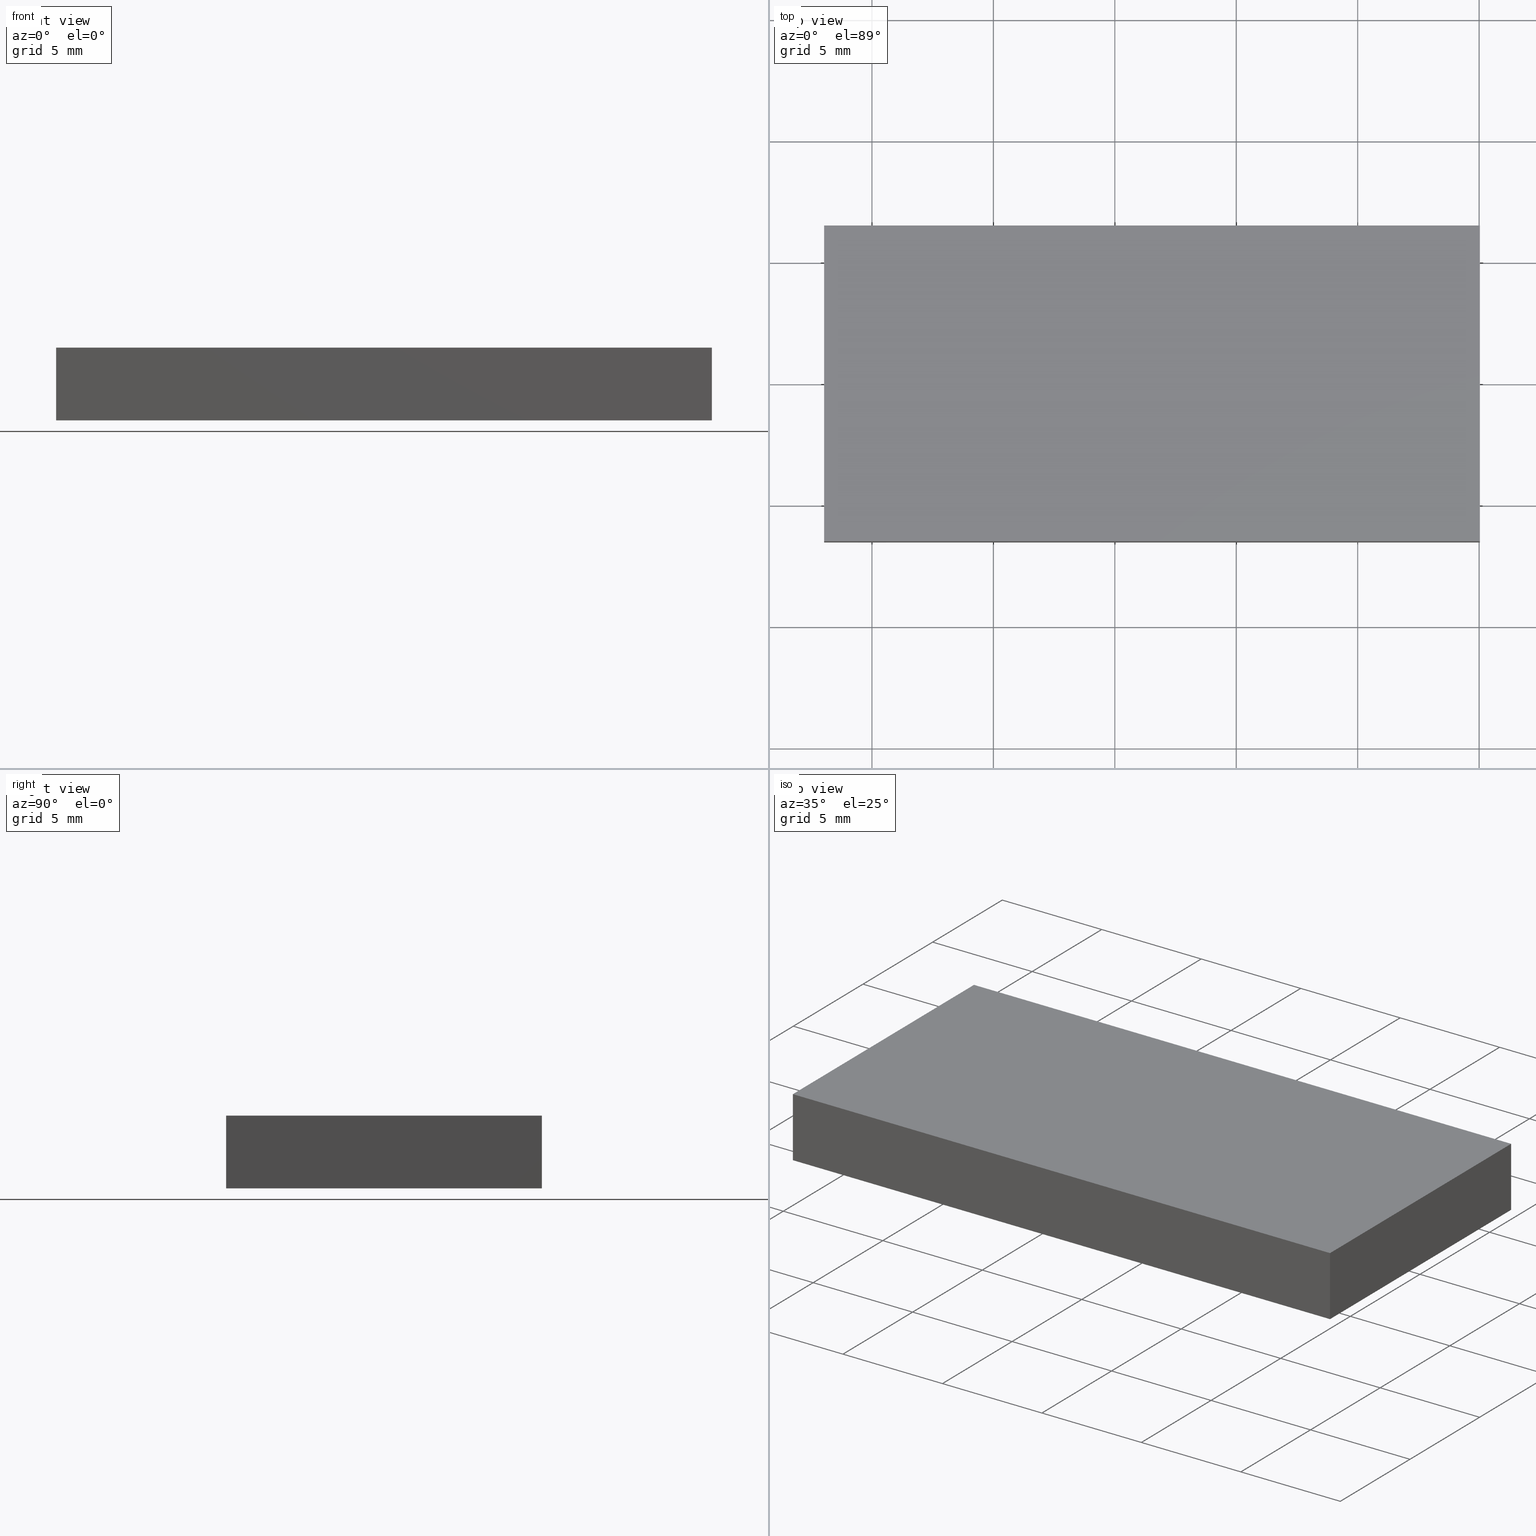
[diagram: canonical four-view strip — front | top / right | iso, engineering-drawing reading convention]
A machine part, canonical four-view strip (front | top / right | iso — engineering-drawing reading convention). The complete STEP part file that produces these views, byte-faithful:
ISO-10303-21;
HEADER;
FILE_DESCRIPTION (( 'STEP AP203' ),
    '1' );
FILE_NAME ('435000.STEP',
    '2020-03-11T07:17:52',
    ( '' ),
    ( '' ),
    'SwSTEP 2.0',
    'SolidWorks 2019',
    '' );
FILE_SCHEMA (( 'CONFIG_CONTROL_DESIGN' ));
ENDSEC;

DATA;
#1 = PERSON_AND_ORGANIZATION_ROLE ( 'design_owner' ) ;
#2 = SHAPE_DEFINITION_REPRESENTATION ( #62, #190 ) ;
#3 = PRODUCT_DEFINITION ( 'δ֪', '', #146, #86 ) ;
#4 = PLANE ( 'NONE',  #221 ) ;
#5 = AXIS2_PLACEMENT_3D ( 'NONE', #29, #199, #30 ) ;
#6 = ORIENTED_EDGE ( 'NONE', *, *, #189, .F. ) ;
#7 = COORDINATED_UNIVERSAL_TIME_OFFSET ( 8, 0, .AHEAD. ) ;
#8 = DATE_AND_TIME ( #156, #173 ) ;
#9 = ORIENTED_EDGE ( 'NONE', *, *, #53, .F. ) ;
#10 = ORIENTED_EDGE ( 'NONE', *, *, #189, .T. ) ;
#11 = LINE ( 'NONE', #141, #157 ) ;
#12 = ADVANCED_FACE ( 'NONE', ( #55 ), #4, .F. ) ;
#13 = CARTESIAN_POINT ( 'NONE',  ( 15.03124999999999645, -6.499999999999990230, 0.0000000000000000000 ) ) ;
#14 = CARTESIAN_POINT ( 'NONE',  ( -11.96875000000000178, 6.500000000000000888, 0.0000000000000000000 ) ) ;
#15 = ORIENTED_EDGE ( 'NONE', *, *, #203, .T. ) ;
#16 = CC_DESIGN_SECURITY_CLASSIFICATION ( #28, ( #146 ) ) ;
#17 = CARTESIAN_POINT ( 'NONE',  ( -11.96875000000000178, -6.499999999999999112, 3.000000000000000000 ) ) ;
#18 = ORIENTED_EDGE ( 'NONE', *, *, #180, .F. ) ;
#19 = CARTESIAN_POINT ( 'NONE',  ( -11.96875000000000178, 6.500000000000000888, 3.000000000000000000 ) ) ;
#20 = DIRECTION ( 'NONE',  ( 1.334402673828314079E-16, 1.000000000000000000, -0.0000000000000000000 ) ) ;
#21 = PERSON_AND_ORGANIZATION_ROLE ( 'design_supplier' ) ;
#22 = APPLICATION_PROTOCOL_DEFINITION ( 'international standard', 'config_control_design', 1994, #183 ) ;
#23 = PERSON_AND_ORGANIZATION ( #212, #24 ) ;
#24 = ORGANIZATION ( 'δָ��', 'δָ��', '' ) ;
#25 = ORIENTED_EDGE ( 'NONE', *, *, #60, .F. ) ;
#26 = PERSON_AND_ORGANIZATION ( #212, #24 ) ;
#27 = DIRECTION ( 'NONE',  ( 1.000000000000000000, 3.212450881438532241E-16, 0.0000000000000000000 ) ) ;
#28 = SECURITY_CLASSIFICATION ( '', '', #185 ) ;
#29 = CARTESIAN_POINT ( 'NONE',  ( -11.96875000000000178, 6.500000000000000888, 3.000000000000000000 ) ) ;
#30 = DIRECTION ( 'NONE',  ( 0.0000000000000000000, -0.0000000000000000000, -1.000000000000000000 ) ) ;
#31 = APPROVAL_PERSON_ORGANIZATION ( #208, #108, #155 ) ;
#32 = DIRECTION ( 'NONE',  ( 0.0000000000000000000, -1.000000000000000000, 0.0000000000000000000 ) ) ;
#33 = ORIENTED_EDGE ( 'NONE', *, *, #144, .T. ) ;
#34 = CARTESIAN_POINT ( 'NONE',  ( 15.03124999999999822, 6.500000000000000888, 0.0000000000000000000 ) ) ;
#35 = AXIS2_PLACEMENT_3D ( 'NONE', #50, #112, #225 ) ;
#36 = PERSON_AND_ORGANIZATION ( #212, #24 ) ;
#37 = MANIFOLD_SOLID_BREP ( '͹̨-����1', #236 ) ;
#38 = PERSON_AND_ORGANIZATION ( #212, #24 ) ;
#39 =( GEOMETRIC_REPRESENTATION_CONTEXT ( 3 ) GLOBAL_UNCERTAINTY_ASSIGNED_CONTEXT ( ( #143 ) ) GLOBAL_UNIT_ASSIGNED_CONTEXT ( ( #48, #216, #128 ) ) REPRESENTATION_CONTEXT ( 'NONE', 'WORKASPACE' ) );
#40 = CC_DESIGN_DATE_AND_TIME_ASSIGNMENT ( #188, #139, ( #28 ) ) ;
#41 = ORIENTED_EDGE ( 'NONE', *, *, #230, .T. ) ;
#42 = EDGE_CURVE ( 'NONE', #142, #117, #114, .T. ) ;
#43 = DIRECTION ( 'NONE',  ( -0.0000000000000000000, 0.0000000000000000000, -1.000000000000000000 ) ) ;
#44 = CC_DESIGN_PERSON_AND_ORGANIZATION_ASSIGNMENT ( #76, #1, ( #51 ) ) ;
#45 = VECTOR ( 'NONE', #234, 1000.000000000000000 ) ;
#46 = DIRECTION ( 'NONE',  ( -1.000000000000000000, -0.0000000000000000000, -0.0000000000000000000 ) ) ;
#47 = VECTOR ( 'NONE', #32, 1000.000000000000000 ) ;
#48 =( LENGTH_UNIT ( ) NAMED_UNIT ( * ) SI_UNIT ( .MILLI., .METRE. ) );
#49 = CARTESIAN_POINT ( 'NONE',  ( 15.03124999999999645, -6.499999999999990230, 3.000000000000000000 ) ) ;
#50 = CARTESIAN_POINT ( 'NONE',  ( -11.96875000000000178, -6.499999999999999112, 3.000000000000000000 ) ) ;
#51 = PRODUCT ( '435000', '435000', '', ( #151 ) ) ;
#52 = FACE_OUTER_BOUND ( 'NONE', #69, .T. ) ;
#53 = EDGE_CURVE ( 'NONE', #101, #174, #11, .T. ) ;
#54 = PERSON_AND_ORGANIZATION_ROLE ( 'classification_officer' ) ;
#55 = FACE_OUTER_BOUND ( 'NONE', #125, .T. ) ;
#56 = LOCAL_TIME ( 15, 17, 52.00000000000000000, #106 ) ;
#57 = APPROVAL_STATUS ( 'not_yet_approved' ) ;
#58 = DIRECTION ( 'NONE',  ( 1.000000000000000000, 0.0000000000000000000, -0.0000000000000000000 ) ) ;
#59 = PERSON_AND_ORGANIZATION_ROLE ( 'creator' ) ;
#60 = EDGE_CURVE ( 'NONE', #96, #175, #195, .T. ) ;
#61 = APPROVAL ( #187, 'δָ��' ) ;
#62 = PRODUCT_DEFINITION_SHAPE ( 'NONE', 'NONE',  #3 ) ;
#63 = LINE ( 'NONE', #34, #134 ) ;
#64 = CC_DESIGN_APPROVAL ( #61, ( #146 ) ) ;
#65 = CARTESIAN_POINT ( 'NONE',  ( 0.0000000000000000000, 0.0000000000000000000, 3.000000000000000000 ) ) ;
#66 = ORIENTED_EDGE ( 'NONE', *, *, #119, .T. ) ;
#67 = DIRECTION ( 'NONE',  ( 0.0000000000000000000, 0.0000000000000000000, -1.000000000000000000 ) ) ;
#68 = CARTESIAN_POINT ( 'NONE',  ( 15.03124999999999645, -6.499999999999990230, 3.000000000000000000 ) ) ;
#69 = EDGE_LOOP ( 'NONE', ( #171, #122, #204, #129 ) ) ;
#70 = ADVANCED_FACE ( 'NONE', ( #118 ), #163, .F. ) ;
#71 = PLANE ( 'NONE',  #138 ) ;
#72 = ORIENTED_EDGE ( 'NONE', *, *, #166, .T. ) ;
#73 = PERSON_AND_ORGANIZATION_ROLE ( 'creator' ) ;
#74 = COORDINATED_UNIVERSAL_TIME_OFFSET ( 8, 0, .AHEAD. ) ;
#75 = APPROVAL_ROLE ( '' ) ;
#76 = PERSON_AND_ORGANIZATION ( #212, #24 ) ;
#77 = ORIENTED_EDGE ( 'NONE', *, *, #144, .F. ) ;
#78 = DIRECTION ( 'NONE',  ( 1.334402673828314079E-16, 1.000000000000000000, -0.0000000000000000000 ) ) ;
#79 = PRODUCT_RELATED_PRODUCT_CATEGORY ( 'detail', '', ( #51 ) ) ;
#80 = PLANE ( 'NONE',  #5 ) ;
#81 = DIRECTION ( 'NONE',  ( 0.0000000000000000000, -1.000000000000000000, 0.0000000000000000000 ) ) ;
#82 = ADVANCED_FACE ( 'NONE', ( #198 ), #87, .F. ) ;
#83 = APPROVAL_PERSON_ORGANIZATION ( #38, #235, #89 ) ;
#84 = CARTESIAN_POINT ( 'NONE',  ( -11.96875000000000178, -6.499999999999999112, 3.000000000000000000 ) ) ;
#85 = LINE ( 'NONE', #229, #194 ) ;
#86 = DESIGN_CONTEXT ( 'detailed design', #183, 'design' ) ;
#87 = PLANE ( 'NONE',  #100 ) ;
#88 = APPLICATION_PROTOCOL_DEFINITION ( 'international standard', 'config_control_design', 1994, #172 ) ;
#89 = APPROVAL_ROLE ( '' ) ;
#90 = PERSON_AND_ORGANIZATION ( #212, #24 ) ;
#91 = ORIENTED_EDGE ( 'NONE', *, *, #213, .F. ) ;
#92 = VECTOR ( 'NONE', #130, 1000.000000000000000 ) ;
#93 = CALENDAR_DATE ( 2020, 11, 3 ) ;
#94 = VECTOR ( 'NONE', #165, 1000.000000000000000 ) ;
#95 = VECTOR ( 'NONE', #237, 1000.000000000000000 ) ;
#96 = VERTEX_POINT ( 'NONE', #49 ) ;
#97 = LINE ( 'NONE', #68, #228 ) ;
#98 = CC_DESIGN_PERSON_AND_ORGANIZATION_ASSIGNMENT ( #36, #21, ( #146 ) ) ;
#99 = CARTESIAN_POINT ( 'NONE',  ( 15.03124999999999822, 6.500000000000000888, 0.0000000000000000000 ) ) ;
#100 = AXIS2_PLACEMENT_3D ( 'NONE', #65, #215, #102 ) ;
#101 = VERTEX_POINT ( 'NONE', #99 ) ;
#102 = DIRECTION ( 'NONE',  ( -1.000000000000000000, 0.0000000000000000000, -0.0000000000000000000 ) ) ;
#103 = EDGE_LOOP ( 'NONE', ( #9, #6, #182, #18 ) ) ;
#104 = DIRECTION ( 'NONE',  ( -1.000000000000000000, 0.0000000000000000000, -0.0000000000000000000 ) ) ;
#105 = CC_DESIGN_APPROVAL ( #108, ( #3 ) ) ;
#106 = COORDINATED_UNIVERSAL_TIME_OFFSET ( 8, 0, .AHEAD. ) ;
#107 = DATE_TIME_ROLE ( 'creation_date' ) ;
#108 = APPROVAL ( #57, 'δָ��' ) ;
#109 = CALENDAR_DATE ( 2020, 11, 3 ) ;
#110 = ORIENTED_EDGE ( 'NONE', *, *, #211, .T. ) ;
#111 = CALENDAR_DATE ( 2020, 11, 3 ) ;
#112 = DIRECTION ( 'NONE',  ( -3.212450881438532241E-16, 1.000000000000000000, 0.0000000000000000000 ) ) ;
#113 = CC_DESIGN_PERSON_AND_ORGANIZATION_ASSIGNMENT ( #90, #54, ( #28 ) ) ;
#114 = LINE ( 'NONE', #192, #158 ) ;
#115 = CC_DESIGN_APPROVAL ( #235, ( #28 ) ) ;
#116 = CARTESIAN_POINT ( 'NONE',  ( 15.03124999999999822, 6.500000000000000888, 3.000000000000000000 ) ) ;
#117 = VERTEX_POINT ( 'NONE', #13 ) ;
#118 = FACE_OUTER_BOUND ( 'NONE', #207, .T. ) ;
#119 = EDGE_CURVE ( 'NONE', #152, #142, #201, .T. ) ;
#120 = VERTEX_POINT ( 'NONE', #19 ) ;
#121 = CARTESIAN_POINT ( 'NONE',  ( 15.03124999999999822, 6.500000000000000888, 3.000000000000000000 ) ) ;
#122 = ORIENTED_EDGE ( 'NONE', *, *, #166, .F. ) ;
#123 = CC_DESIGN_PERSON_AND_ORGANIZATION_ASSIGNMENT ( #23, #73, ( #3 ) ) ;
#124 = LINE ( 'NONE', #126, #94 ) ;
#125 = EDGE_LOOP ( 'NONE', ( #170, #154, #219, #72 ) ) ;
#126 = CARTESIAN_POINT ( 'NONE',  ( -11.96875000000000178, 6.500000000000000888, 3.000000000000000000 ) ) ;
#127 = APPROVAL_PERSON_ORGANIZATION ( #209, #61, #75 ) ;
#128 =( NAMED_UNIT ( * ) SI_UNIT ( $, .STERADIAN. ) SOLID_ANGLE_UNIT ( ) );
#129 = ORIENTED_EDGE ( 'NONE', *, *, #213, .T. ) ;
#130 = DIRECTION ( 'NONE',  ( -0.0000000000000000000, -0.0000000000000000000, -1.000000000000000000 ) ) ;
#131 = DATE_AND_TIME ( #111, #162 ) ;
#132 = CARTESIAN_POINT ( 'NONE',  ( -11.96875000000000178, 6.500000000000000888, 3.000000000000000000 ) ) ;
#133 = ORIENTED_EDGE ( 'NONE', *, *, #42, .T. ) ;
#134 = VECTOR ( 'NONE', #20, 1000.000000000000000 ) ;
#135 = CARTESIAN_POINT ( 'NONE',  ( 0.0000000000000000000, 0.0000000000000000000, 0.0000000000000000000 ) ) ;
#136 = ORIENTED_EDGE ( 'NONE', *, *, #211, .F. ) ;
#137 = DATE_AND_TIME ( #109, #168 ) ;
#138 = AXIS2_PLACEMENT_3D ( 'NONE', #217, #67, #104 ) ;
#139 = DATE_TIME_ROLE ( 'classification_date' ) ;
#140 = AXIS2_PLACEMENT_3D ( 'NONE', #135, #220, #153 ) ;
#141 = CARTESIAN_POINT ( 'NONE',  ( -11.96875000000000178, 6.500000000000000888, 0.0000000000000000000 ) ) ;
#142 = VERTEX_POINT ( 'NONE', #160 ) ;
#143 = UNCERTAINTY_MEASURE_WITH_UNIT (LENGTH_MEASURE( 1.000000000000000082E-05 ), #48, 'distance_accuracy_value', 'NONE');
#144 = EDGE_CURVE ( 'NONE', #152, #96, #214, .T. ) ;
#145 = PLANE ( 'NONE',  #150 ) ;
#146 = PRODUCT_DEFINITION_FORMATION_WITH_SPECIFIED_SOURCE ( '�κ�', '', #51, .NOT_KNOWN. ) ;
#147 = CARTESIAN_POINT ( 'NONE',  ( -11.96875000000000178, -6.499999999999999112, 3.000000000000000000 ) ) ;
#148 = LINE ( 'NONE', #178, #47 ) ;
#149 = FACE_OUTER_BOUND ( 'NONE', #103, .T. ) ;
#150 = AXIS2_PLACEMENT_3D ( 'NONE', #202, #233, #197 ) ;
#151 = MECHANICAL_CONTEXT ( 'NONE', #172, 'mechanical' ) ;
#152 = VERTEX_POINT ( 'NONE', #17 ) ;
#153 = DIRECTION ( 'NONE',  ( 1.000000000000000000, 0.0000000000000000000, 0.0000000000000000000 ) ) ;
#154 = ORIENTED_EDGE ( 'NONE', *, *, #119, .F. ) ;
#155 = APPROVAL_ROLE ( '' ) ;
#156 = CALENDAR_DATE ( 2020, 11, 3 ) ;
#157 = VECTOR ( 'NONE', #46, 1000.000000000000000 ) ;
#158 = VECTOR ( 'NONE', #27, 1000.000000000000000 ) ;
#159 = CC_DESIGN_PERSON_AND_ORGANIZATION_ASSIGNMENT ( #26, #59, ( #146 ) ) ;
#160 = CARTESIAN_POINT ( 'NONE',  ( -11.96875000000000178, -6.499999999999999112, 0.0000000000000000000 ) ) ;
#161 = LINE ( 'NONE', #205, #169 ) ;
#162 = LOCAL_TIME ( 15, 17, 52.00000000000000000, #167 ) ;
#163 = PLANE ( 'NONE',  #35 ) ;
#164 = CARTESIAN_POINT ( 'NONE',  ( 15.03124999999999822, 6.500000000000000888, 3.000000000000000000 ) ) ;
#165 = DIRECTION ( 'NONE',  ( -0.0000000000000000000, -0.0000000000000000000, -1.000000000000000000 ) ) ;
#166 = EDGE_CURVE ( 'NONE', #120, #174, #124, .T. ) ;
#167 = COORDINATED_UNIVERSAL_TIME_OFFSET ( 8, 0, .AHEAD. ) ;
#168 = LOCAL_TIME ( 15, 17, 52.00000000000000000, #7 ) ;
#169 = VECTOR ( 'NONE', #176, 1000.000000000000000 ) ;
#170 = ORIENTED_EDGE ( 'NONE', *, *, #180, .T. ) ;
#171 = ORIENTED_EDGE ( 'NONE', *, *, #53, .T. ) ;
#172 = APPLICATION_CONTEXT ( 'configuration controlled 3d designs of mechanical parts and assemblies' ) ;
#173 = LOCAL_TIME ( 15, 17, 52.00000000000000000, #74 ) ;
#174 = VERTEX_POINT ( 'NONE', #14 ) ;
#175 = VERTEX_POINT ( 'NONE', #121 ) ;
#176 = DIRECTION ( 'NONE',  ( -1.000000000000000000, -0.0000000000000000000, -0.0000000000000000000 ) ) ;
#177 = FACE_OUTER_BOUND ( 'NONE', #222, .T. ) ;
#178 = CARTESIAN_POINT ( 'NONE',  ( -11.96875000000000178, 6.500000000000000888, 3.000000000000000000 ) ) ;
#179 = LINE ( 'NONE', #164, #95 ) ;
#180 = EDGE_CURVE ( 'NONE', #174, #142, #85, .T. ) ;
#181 = APPROVAL_DATE_TIME ( #137, #108 ) ;
#182 = ORIENTED_EDGE ( 'NONE', *, *, #42, .F. ) ;
#183 = APPLICATION_CONTEXT ( 'configuration controlled 3d designs of mechanical parts and assemblies' ) ;
#184 = APPROVAL_STATUS ( 'not_yet_approved' ) ;
#185 = SECURITY_CLASSIFICATION_LEVEL ( 'unclassified' ) ;
#186 = ORIENTED_EDGE ( 'NONE', *, *, #60, .T. ) ;
#187 = APPROVAL_STATUS ( 'not_yet_approved' ) ;
#188 = DATE_AND_TIME ( #223, #56 ) ;
#189 = EDGE_CURVE ( 'NONE', #117, #101, #63, .T. ) ;
#190 = ADVANCED_BREP_SHAPE_REPRESENTATION ( '435000', ( #37, #140 ), #39 ) ;
#191 = CC_DESIGN_DATE_AND_TIME_ASSIGNMENT ( #8, #107, ( #3 ) ) ;
#192 = CARTESIAN_POINT ( 'NONE',  ( -11.96875000000000178, -6.499999999999999112, 0.0000000000000000000 ) ) ;
#193 = ADVANCED_FACE ( 'NONE', ( #52 ), #80, .F. ) ;
#194 = VECTOR ( 'NONE', #81, 1000.000000000000000 ) ;
#195 = LINE ( 'NONE', #116, #231 ) ;
#196 = ADVANCED_FACE ( 'NONE', ( #177 ), #145, .F. ) ;
#197 = DIRECTION ( 'NONE',  ( -1.334402673828314079E-16, -1.000000000000000000, 0.0000000000000000000 ) ) ;
#198 = FACE_OUTER_BOUND ( 'NONE', #227, .T. ) ;
#199 = DIRECTION ( 'NONE',  ( 0.0000000000000000000, -1.000000000000000000, 0.0000000000000000000 ) ) ;
#200 = LOCAL_TIME ( 15, 17, 52.00000000000000000, #218 ) ;
#201 = LINE ( 'NONE', #84, #92 ) ;
#202 = CARTESIAN_POINT ( 'NONE',  ( 15.03124999999999822, 6.500000000000000888, 3.000000000000000000 ) ) ;
#203 = EDGE_CURVE ( 'NONE', #175, #120, #161, .T. ) ;
#204 = ORIENTED_EDGE ( 'NONE', *, *, #203, .F. ) ;
#205 = CARTESIAN_POINT ( 'NONE',  ( -11.96875000000000178, 6.500000000000000888, 3.000000000000000000 ) ) ;
#206 = DATE_AND_TIME ( #93, #200 ) ;
#207 = EDGE_LOOP ( 'NONE', ( #133, #136, #77, #66 ) ) ;
#208 = PERSON_AND_ORGANIZATION ( #212, #24 ) ;
#209 = PERSON_AND_ORGANIZATION ( #212, #24 ) ;
#210 = APPROVAL_DATE_TIME ( #131, #235 ) ;
#211 = EDGE_CURVE ( 'NONE', #96, #117, #97, .T. ) ;
#212 = PERSON ( 'δָ��', 'δָ��', 'δָ��', ('δָ��'), ('δָ��'), ('δָ��') ) ;
#213 = EDGE_CURVE ( 'NONE', #175, #101, #179, .T. ) ;
#214 = LINE ( 'NONE', #147, #45 ) ;
#215 = DIRECTION ( 'NONE',  ( 0.0000000000000000000, 0.0000000000000000000, -1.000000000000000000 ) ) ;
#216 =( NAMED_UNIT ( * ) PLANE_ANGLE_UNIT ( ) SI_UNIT ( $, .RADIAN. ) );
#217 = CARTESIAN_POINT ( 'NONE',  ( 0.0000000000000000000, 0.0000000000000000000, 0.0000000000000000000 ) ) ;
#218 = COORDINATED_UNIVERSAL_TIME_OFFSET ( 8, 0, .AHEAD. ) ;
#219 = ORIENTED_EDGE ( 'NONE', *, *, #230, .F. ) ;
#220 = DIRECTION ( 'NONE',  ( 0.0000000000000000000, 0.0000000000000000000, 1.000000000000000000 ) ) ;
#221 = AXIS2_PLACEMENT_3D ( 'NONE', #132, #58, #43 ) ;
#222 = EDGE_LOOP ( 'NONE', ( #10, #91, #25, #110 ) ) ;
#223 = CALENDAR_DATE ( 2020, 11, 3 ) ;
#224 = APPROVAL_DATE_TIME ( #206, #61 ) ;
#225 = DIRECTION ( 'NONE',  ( -1.000000000000000000, -3.212450881438532241E-16, 0.0000000000000000000 ) ) ;
#226 = ADVANCED_FACE ( 'NONE', ( #149 ), #71, .T. ) ;
#227 = EDGE_LOOP ( 'NONE', ( #15, #41, #33, #186 ) ) ;
#228 = VECTOR ( 'NONE', #232, 1000.000000000000000 ) ;
#229 = CARTESIAN_POINT ( 'NONE',  ( -11.96875000000000178, 6.500000000000000888, 0.0000000000000000000 ) ) ;
#230 = EDGE_CURVE ( 'NONE', #120, #152, #148, .T. ) ;
#231 = VECTOR ( 'NONE', #78, 1000.000000000000000 ) ;
#232 = DIRECTION ( 'NONE',  ( -0.0000000000000000000, -0.0000000000000000000, -1.000000000000000000 ) ) ;
#233 = DIRECTION ( 'NONE',  ( -1.000000000000000000, 1.334402673828314079E-16, 0.0000000000000000000 ) ) ;
#234 = DIRECTION ( 'NONE',  ( 1.000000000000000000, 3.212450881438532241E-16, 0.0000000000000000000 ) ) ;
#235 = APPROVAL ( #184, 'δָ��' ) ;
#236 = CLOSED_SHELL ( 'NONE', ( #193, #12, #70, #196, #82, #226 ) ) ;
#237 = DIRECTION ( 'NONE',  ( -0.0000000000000000000, -0.0000000000000000000, -1.000000000000000000 ) ) ;
ENDSEC;
END-ISO-10303-21;
